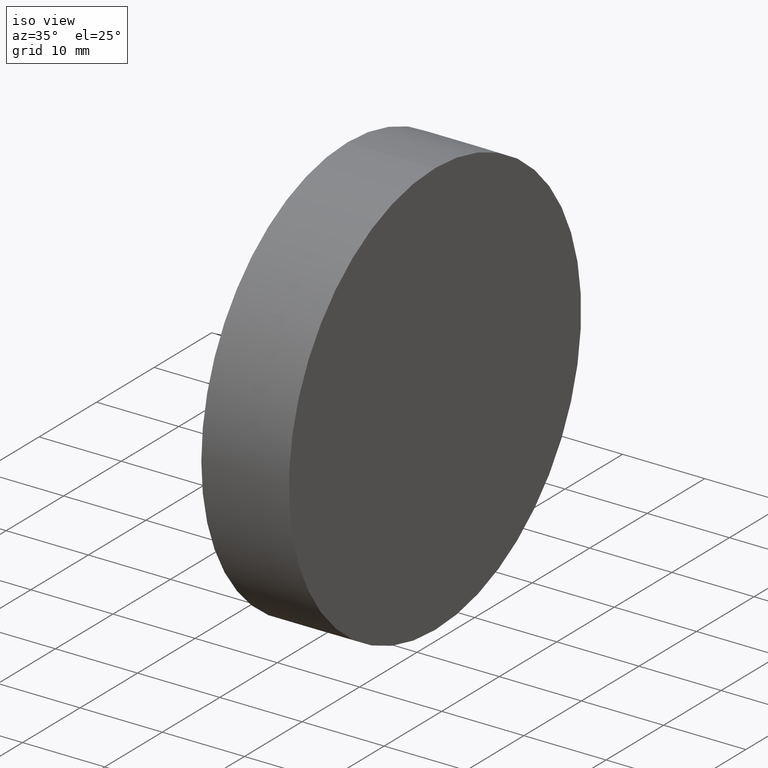
[diagram: clean part render]
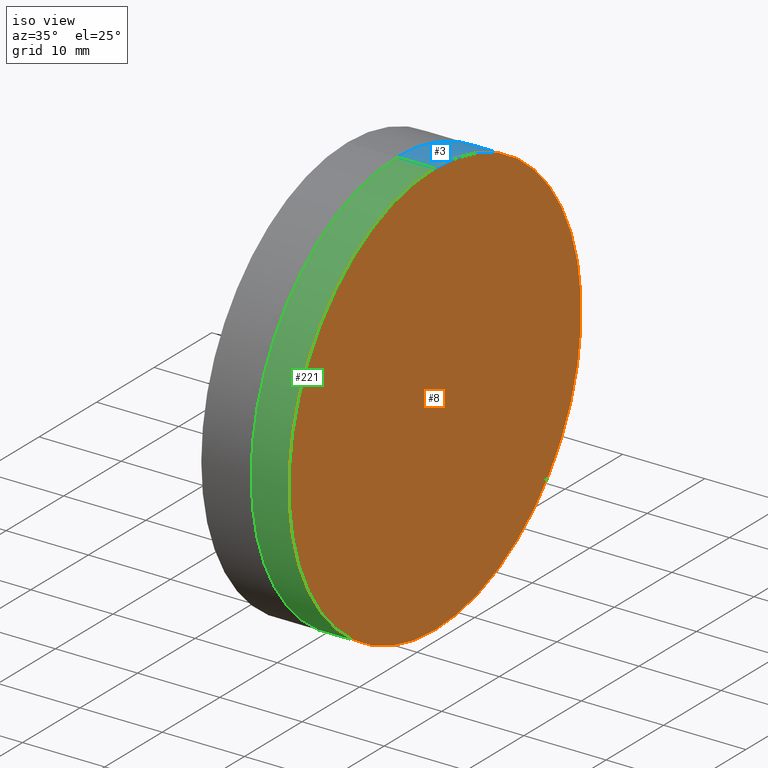
[diagram: same view with three faces highlighted in distinct colors, each labeled with its STEP entity id]
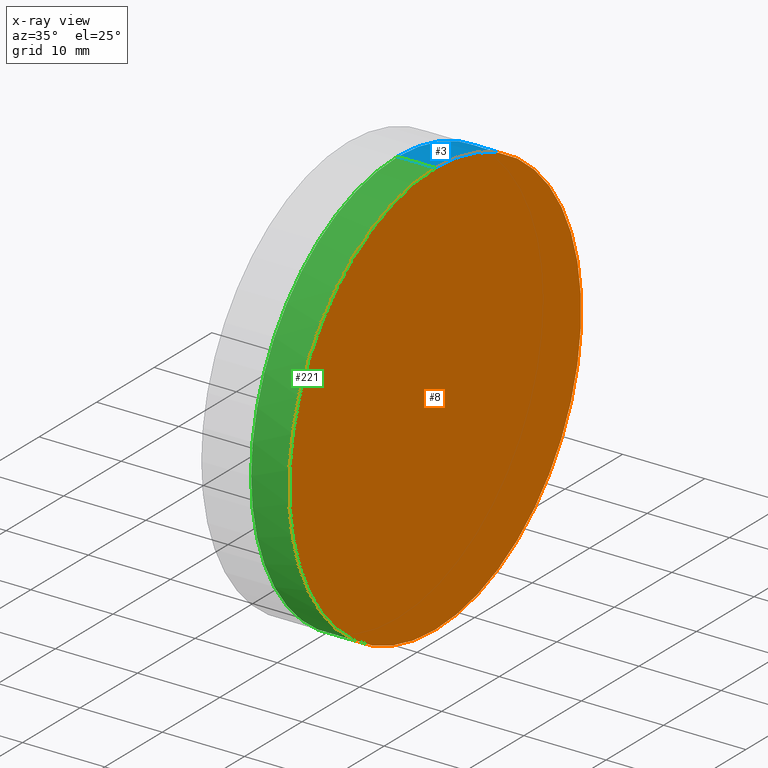
[diagram: x-ray of the same camera — body ghosted, the three highlighted faces saturated]
A machine part, iso view with three faces highlighted in distinct colors.
The next image is the same camera in x-ray (body ghosted, the three faces saturated) — at least one of them is partly hidden behind the body in this view.
Their STEP definitions:

[orange] entity #8 — the highlighted planar face has unit normal (1, 0, -0).
#7 = CIRCLE ( 'NONE', #324, 25.39999999999999858 ) ;
#8 = ADVANCED_FACE ( 'NONE', ( #59 ), #30, .T. ) ;
#20 = ORIENTED_EDGE ( 'NONE', *, *, #197, .T. ) ;
#25 = AXIS2_PLACEMENT_3D ( 'NONE', #154, #272, #242 ) ;
#30 = PLANE ( 'NONE',  #25 ) ;
#59 = FACE_OUTER_BOUND ( 'NONE', #155, .T. ) ;
#60 = VERTEX_POINT ( 'NONE', #66 ) ;
#66 = CARTESIAN_POINT ( 'NONE',  ( -20.19312051557051291, 13.39555463349441666, 25.39999999999999858 ) ) ;
#84 = EDGE_CURVE ( 'NONE', #300, #60, #301, .T. ) ;
#98 = CARTESIAN_POINT ( 'NONE',  ( -20.19312051557051291, 13.39555463349441311, 0.000000000000000000 ) ) ;
#154 = CARTESIAN_POINT ( 'NONE',  ( -20.19312051557051291, 38.79555463349441169, 0.000000000000000000 ) ) ;
#155 = EDGE_LOOP ( 'NONE', ( #307, #20 ) ) ;
#156 = DIRECTION ( 'NONE',  ( 0.000000000000000000, 0.000000000000000000, -1.000000000000000000 ) ) ;
#161 = DIRECTION ( 'NONE',  ( 1.000000000000000000, -0.000000000000000000, -0.000000000000000000 ) ) ;
#197 = EDGE_CURVE ( 'NONE', #60, #300, #7, .T. ) ;
#238 = CARTESIAN_POINT ( 'NONE',  ( -20.19312051557051291, 13.39555463349441311, -25.39999999999999858 ) ) ;
#242 = DIRECTION ( 'NONE',  ( -0.000000000000000000, 0.000000000000000000, -1.000000000000000000 ) ) ;
#272 = DIRECTION ( 'NONE',  ( 1.000000000000000000, 0.000000000000000000, -0.000000000000000000 ) ) ;
#278 = DIRECTION ( 'NONE',  ( 0.000000000000000000, 0.000000000000000000, -1.000000000000000000 ) ) ;
#300 = VERTEX_POINT ( 'NONE', #238 ) ;
#301 = CIRCLE ( 'NONE', #359, 25.39999999999999858 ) ;
#305 = CARTESIAN_POINT ( 'NONE',  ( -20.19312051557051291, 13.39555463349441311, 0.000000000000000000 ) ) ;
#307 = ORIENTED_EDGE ( 'NONE', *, *, #84, .T. ) ;
#324 = AXIS2_PLACEMENT_3D ( 'NONE', #305, #348, #156 ) ;
#348 = DIRECTION ( 'NONE',  ( 1.000000000000000000, -0.000000000000000000, -0.000000000000000000 ) ) ;
#359 = AXIS2_PLACEMENT_3D ( 'NONE', #98, #161, #278 ) ;

[blue] entity #3 — the highlighted cylindrical surface (partial cylindrical patch) has radius 25.4 mm, axis along (1, -0, -0).
#3 = ADVANCED_FACE ( 'NONE', ( #299 ), #123, .T. ) ;
#13 = VERTEX_POINT ( 'NONE', #193 ) ;
#21 = DIRECTION ( 'NONE',  ( 1.000000000000000000, -0.000000000000000000, -0.000000000000000000 ) ) ;
#22 = VERTEX_POINT ( 'NONE', #224 ) ;
#26 = ORIENTED_EDGE ( 'NONE', *, *, #84, .F. ) ;
#33 = CIRCLE ( 'NONE', #119, 25.39999999999999858 ) ;
#48 = CARTESIAN_POINT ( 'NONE',  ( -20.19312051557051291, 13.39555463349441311, -25.39999999999999858 ) ) ;
#60 = VERTEX_POINT ( 'NONE', #66 ) ;
#66 = CARTESIAN_POINT ( 'NONE',  ( -20.19312051557051291, 13.39555463349441666, 25.39999999999999858 ) ) ;
#83 = LINE ( 'NONE', #48, #97 ) ;
#84 = EDGE_CURVE ( 'NONE', #300, #60, #301, .T. ) ;
#85 = DIRECTION ( 'NONE',  ( 1.000000000000000000, -0.000000000000000000, -0.000000000000000000 ) ) ;
#87 = EDGE_LOOP ( 'NONE', ( #167, #178, #26, #304, #347 ) ) ;
#97 = VECTOR ( 'NONE', #174, 1000.000000000000000 ) ;
#98 = CARTESIAN_POINT ( 'NONE',  ( -20.19312051557051291, 13.39555463349441311, 0.000000000000000000 ) ) ;
#101 = VECTOR ( 'NONE', #244, 1000.000000000000000 ) ;
#119 = AXIS2_PLACEMENT_3D ( 'NONE', #386, #21, #391 ) ;
#123 = CYLINDRICAL_SURFACE ( 'NONE', #201, 25.39999999999999858 ) ;
#159 = VERTEX_POINT ( 'NONE', #256 ) ;
#161 = DIRECTION ( 'NONE',  ( 1.000000000000000000, -0.000000000000000000, -0.000000000000000000 ) ) ;
#167 = ORIENTED_EDGE ( 'NONE', *, *, #329, .T. ) ;
#174 = DIRECTION ( 'NONE',  ( 1.000000000000000000, -0.000000000000000000, -0.000000000000000000 ) ) ;
#178 = ORIENTED_EDGE ( 'NONE', *, *, #365, .T. ) ;
#189 = EDGE_CURVE ( 'NONE', #22, #300, #83, .T. ) ;
#193 = CARTESIAN_POINT ( 'NONE',  ( -24.78204361462947602, 38.79555463349419853, 0.000000000000000000 ) ) ;
#201 = AXIS2_PLACEMENT_3D ( 'NONE', #374, #241, #342 ) ;
#218 = AXIS2_PLACEMENT_3D ( 'NONE', #373, #85, #265 ) ;
#224 = CARTESIAN_POINT ( 'NONE',  ( -24.78204361462951866, 13.39555463349441311, -25.39999999999999858 ) ) ;
#238 = CARTESIAN_POINT ( 'NONE',  ( -20.19312051557051291, 13.39555463349441311, -25.39999999999999858 ) ) ;
#241 = DIRECTION ( 'NONE',  ( 1.000000000000000000, -0.000000000000000000, -0.000000000000000000 ) ) ;
#244 = DIRECTION ( 'NONE',  ( 1.000000000000000000, -0.000000000000000000, -0.000000000000000000 ) ) ;
#251 = EDGE_CURVE ( 'NONE', #22, #13, #346, .T. ) ;
#256 = CARTESIAN_POINT ( 'NONE',  ( -24.78204361462951866, 13.39555463349441666, 25.39999999999999858 ) ) ;
#265 = DIRECTION ( 'NONE',  ( 0.000000000000000000, 0.000000000000000000, -1.000000000000000000 ) ) ;
#267 = LINE ( 'NONE', #274, #101 ) ;
#274 = CARTESIAN_POINT ( 'NONE',  ( -20.19312051557051291, 13.39555463349441666, 25.39999999999999858 ) ) ;
#278 = DIRECTION ( 'NONE',  ( 0.000000000000000000, 0.000000000000000000, -1.000000000000000000 ) ) ;
#299 = FACE_OUTER_BOUND ( 'NONE', #87, .T. ) ;
#300 = VERTEX_POINT ( 'NONE', #238 ) ;
#301 = CIRCLE ( 'NONE', #359, 25.39999999999999858 ) ;
#304 = ORIENTED_EDGE ( 'NONE', *, *, #189, .F. ) ;
#329 = EDGE_CURVE ( 'NONE', #13, #159, #33, .T. ) ;
#342 = DIRECTION ( 'NONE',  ( 0.000000000000000000, 0.000000000000000000, -1.000000000000000000 ) ) ;
#346 = CIRCLE ( 'NONE', #218, 25.39999999999999858 ) ;
#347 = ORIENTED_EDGE ( 'NONE', *, *, #251, .T. ) ;
#359 = AXIS2_PLACEMENT_3D ( 'NONE', #98, #161, #278 ) ;
#365 = EDGE_CURVE ( 'NONE', #159, #60, #267, .T. ) ;
#373 = CARTESIAN_POINT ( 'NONE',  ( -24.78204361462951866, 13.39555463349441311, 0.000000000000000000 ) ) ;
#374 = CARTESIAN_POINT ( 'NONE',  ( -20.19312051557051291, 13.39555463349441311, 0.000000000000000000 ) ) ;
#386 = CARTESIAN_POINT ( 'NONE',  ( -24.78204361462951866, 13.39555463349441311, 0.000000000000000000 ) ) ;
#391 = DIRECTION ( 'NONE',  ( 0.000000000000000000, 0.000000000000000000, -1.000000000000000000 ) ) ;

[green] entity #221 — the highlighted cylindrical surface (partial cylindrical patch) has radius 25.4 mm, axis along (1, -0, -0).
#7 = CIRCLE ( 'NONE', #324, 25.39999999999999858 ) ;
#11 = CYLINDRICAL_SURFACE ( 'NONE', #164, 25.39999999999999858 ) ;
#14 = CARTESIAN_POINT ( 'NONE',  ( -20.19312051557051291, 13.39555463349441311, 0.000000000000000000 ) ) ;
#22 = VERTEX_POINT ( 'NONE', #224 ) ;
#28 = DIRECTION ( 'NONE',  ( 1.000000000000000000, -0.000000000000000000, -0.000000000000000000 ) ) ;
#29 = CIRCLE ( 'NONE', #249, 25.39999999999999858 ) ;
#40 = DIRECTION ( 'NONE',  ( 0.000000000000000000, 0.000000000000000000, -1.000000000000000000 ) ) ;
#44 = ORIENTED_EDGE ( 'NONE', *, *, #197, .F. ) ;
#47 = DIRECTION ( 'NONE',  ( 0.000000000000000000, 0.000000000000000000, -1.000000000000000000 ) ) ;
#48 = CARTESIAN_POINT ( 'NONE',  ( -20.19312051557051291, 13.39555463349441311, -25.39999999999999858 ) ) ;
#60 = VERTEX_POINT ( 'NONE', #66 ) ;
#66 = CARTESIAN_POINT ( 'NONE',  ( -20.19312051557051291, 13.39555463349441666, 25.39999999999999858 ) ) ;
#68 = DIRECTION ( 'NONE',  ( 1.000000000000000000, -0.000000000000000000, -0.000000000000000000 ) ) ;
#83 = LINE ( 'NONE', #48, #97 ) ;
#97 = VECTOR ( 'NONE', #174, 1000.000000000000000 ) ;
#101 = VECTOR ( 'NONE', #244, 1000.000000000000000 ) ;
#134 = AXIS2_PLACEMENT_3D ( 'NONE', #356, #68, #40 ) ;
#141 = DIRECTION ( 'NONE',  ( 1.000000000000000000, -0.000000000000000000, -0.000000000000000000 ) ) ;
#145 = EDGE_CURVE ( 'NONE', #159, #308, #222, .T. ) ;
#152 = ORIENTED_EDGE ( 'NONE', *, *, #227, .T. ) ;
#156 = DIRECTION ( 'NONE',  ( 0.000000000000000000, 0.000000000000000000, -1.000000000000000000 ) ) ;
#159 = VERTEX_POINT ( 'NONE', #256 ) ;
#164 = AXIS2_PLACEMENT_3D ( 'NONE', #14, #141, #358 ) ;
#174 = DIRECTION ( 'NONE',  ( 1.000000000000000000, -0.000000000000000000, -0.000000000000000000 ) ) ;
#188 = FACE_OUTER_BOUND ( 'NONE', #331, .T. ) ;
#189 = EDGE_CURVE ( 'NONE', #22, #300, #83, .T. ) ;
#197 = EDGE_CURVE ( 'NONE', #60, #300, #7, .T. ) ;
#209 = CARTESIAN_POINT ( 'NONE',  ( -24.78204361462951866, 13.39555463349441311, 0.000000000000000000 ) ) ;
#221 = ADVANCED_FACE ( 'NONE', ( #188 ), #11, .T. ) ;
#222 = CIRCLE ( 'NONE', #134, 25.39999999999999858 ) ;
#224 = CARTESIAN_POINT ( 'NONE',  ( -24.78204361462951866, 13.39555463349441311, -25.39999999999999858 ) ) ;
#227 = EDGE_CURVE ( 'NONE', #308, #22, #29, .T. ) ;
#238 = CARTESIAN_POINT ( 'NONE',  ( -20.19312051557051291, 13.39555463349441311, -25.39999999999999858 ) ) ;
#244 = DIRECTION ( 'NONE',  ( 1.000000000000000000, -0.000000000000000000, -0.000000000000000000 ) ) ;
#249 = AXIS2_PLACEMENT_3D ( 'NONE', #209, #28, #47 ) ;
#256 = CARTESIAN_POINT ( 'NONE',  ( -24.78204361462951866, 13.39555463349441666, 25.39999999999999858 ) ) ;
#259 = CARTESIAN_POINT ( 'NONE',  ( -24.78204361462947602, -12.00444536650537053, 3.110602869834250833E-15 ) ) ;
#263 = ORIENTED_EDGE ( 'NONE', *, *, #189, .T. ) ;
#267 = LINE ( 'NONE', #274, #101 ) ;
#274 = CARTESIAN_POINT ( 'NONE',  ( -20.19312051557051291, 13.39555463349441666, 25.39999999999999858 ) ) ;
#289 = ORIENTED_EDGE ( 'NONE', *, *, #145, .T. ) ;
#300 = VERTEX_POINT ( 'NONE', #238 ) ;
#305 = CARTESIAN_POINT ( 'NONE',  ( -20.19312051557051291, 13.39555463349441311, 0.000000000000000000 ) ) ;
#308 = VERTEX_POINT ( 'NONE', #259 ) ;
#324 = AXIS2_PLACEMENT_3D ( 'NONE', #305, #348, #156 ) ;
#331 = EDGE_LOOP ( 'NONE', ( #364, #289, #152, #263, #44 ) ) ;
#348 = DIRECTION ( 'NONE',  ( 1.000000000000000000, -0.000000000000000000, -0.000000000000000000 ) ) ;
#356 = CARTESIAN_POINT ( 'NONE',  ( -24.78204361462951866, 13.39555463349441311, 0.000000000000000000 ) ) ;
#358 = DIRECTION ( 'NONE',  ( 0.000000000000000000, 0.000000000000000000, -1.000000000000000000 ) ) ;
#364 = ORIENTED_EDGE ( 'NONE', *, *, #365, .F. ) ;
#365 = EDGE_CURVE ( 'NONE', #159, #60, #267, .T. ) ;